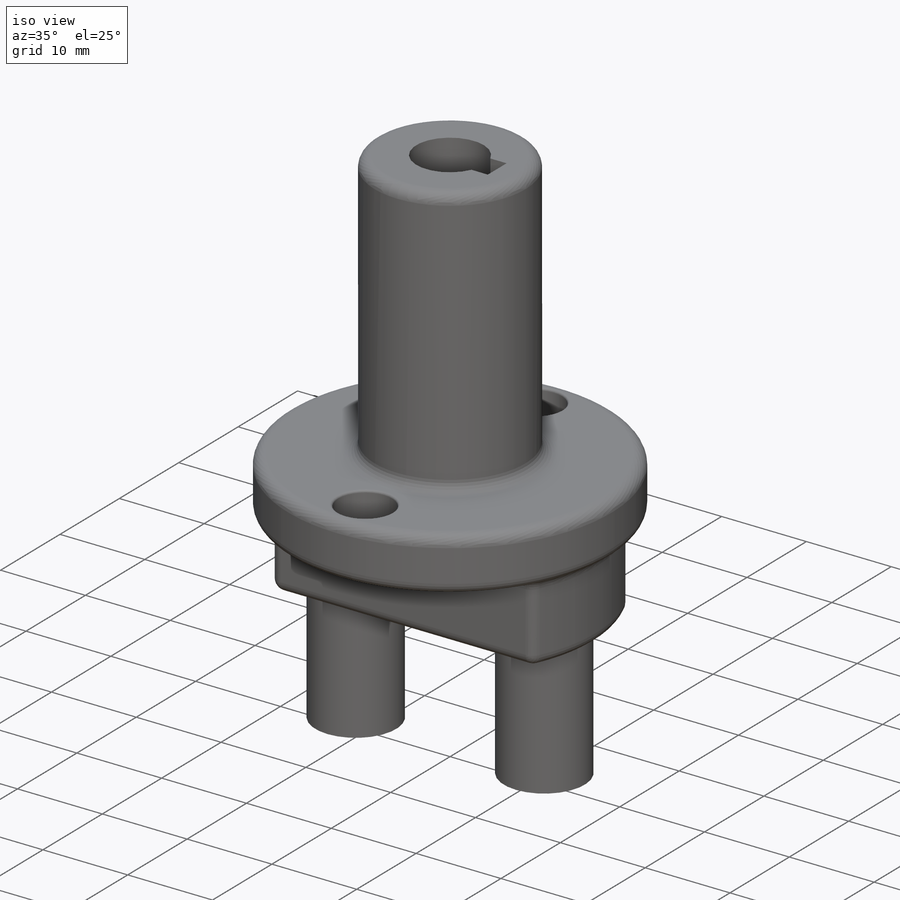
[diagram: iso view]
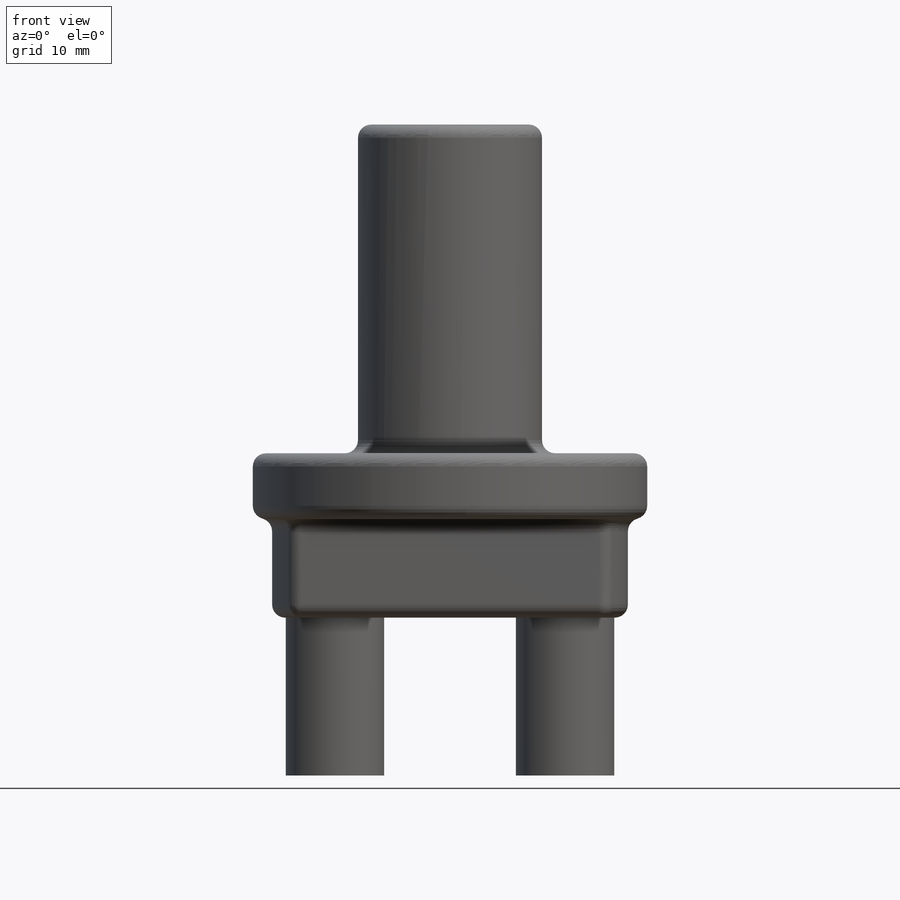
[diagram: front view]
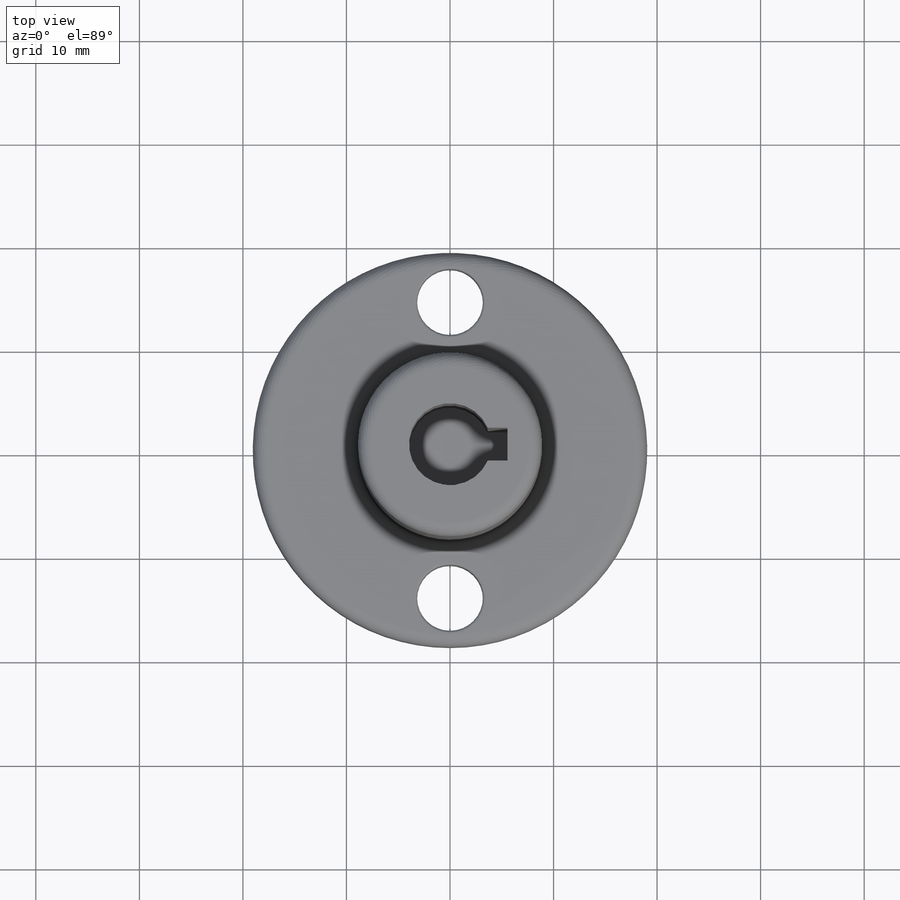
[diagram: top view]
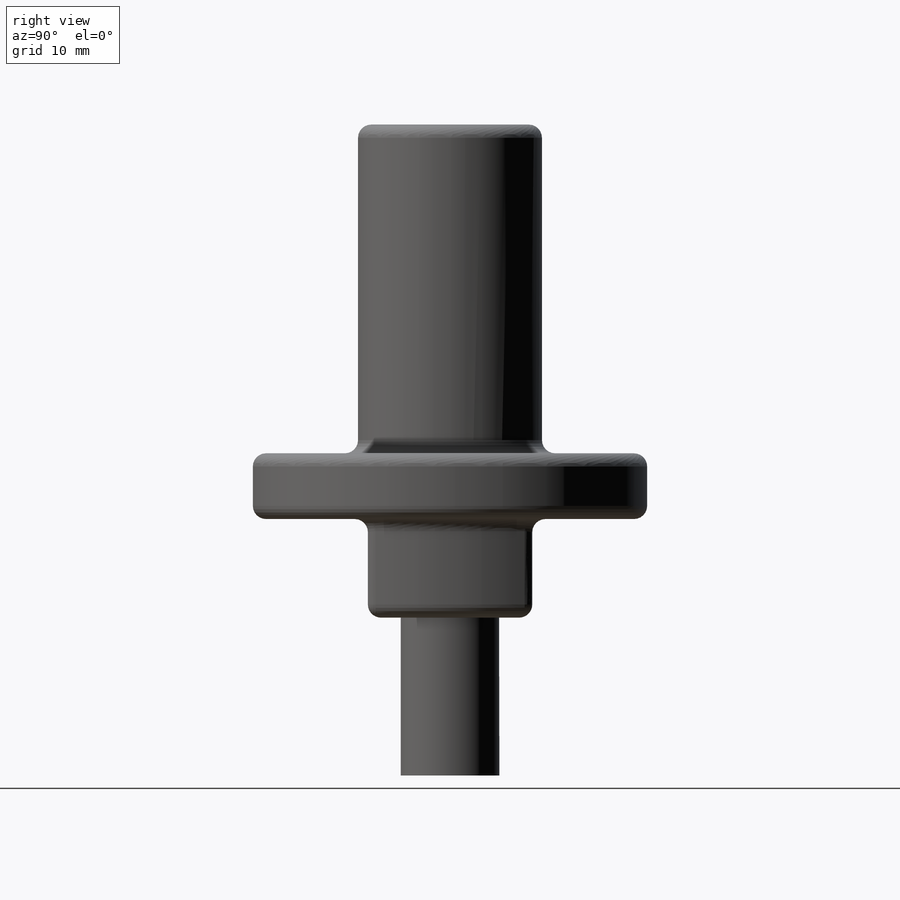
[diagram: right view]
SOLIDWORKS PART (.sldprt)
format: sldprt  version: not decoded by parser v0  size: 621,056 bytes
history: native  units: mm
features: sketch x7, extrude x4, cut_extrude x3, fillet x3, material x1 (+13 scaffold rows collapsed)
feature tree (31):
  scaffold x13  (default folders/planes/origin — collapsed)
  material  "Material <not specified>"
  sketch  "Sketch1"  dims[D1=38.1mm]
  extrude  "Extrude1"  Depth=6.35mm
  sketch  "Sketch2"  dims[D1=15.875mm D2=7.9375mm D3=15.24mm D4=15.24mm]
  extrude  "Extrude2"  Depth=9.525mm
  sketch  "Sketch3"  dims[D1=17.78mm]
  extrude  "Extrude3"  Depth=31.75mm
  sketch  "Sketch4"  dims[D1=7.9375mm]
  cut_extrude  "Cut-Extrude1"  Depth=25.4mm
  sketch  "Sketch5"  dims[D1=9.525mm D2=9.525mm D3=22.225mm D4=11.1125mm D5=7.9375mm]
  extrude  "Extrude4"  Depth=15.24mm
  sketch  "Sketch6"  dims[D1=3.175mm D2=3.175mm D3=1.5875mm D4=~5.55625mm]
  cut_extrude  "Cut-Extrude2"  [1 undecoded]
  fillet  "Fillet1"  Radius=1.27mm
  fillet  "Fillet2"  Radius=1.27mm
  sketch  "Sketch7"  dims[D1=6.35mm D2=6.35mm D3=28.575mm D4=14.2875mm]
  cut_extrude  "Cut-Extrude3"  [1 undecoded]
  fillet  "Fillet3"  Radius=0.254mm
decode coverage: 15 of 17 modeling features carry decoded parameters
note: ~ marks probable driven/reference dimensions
note: 2 parameter values undecoded
note: suppression state not decoded; provenance and decode notes live in map.json
